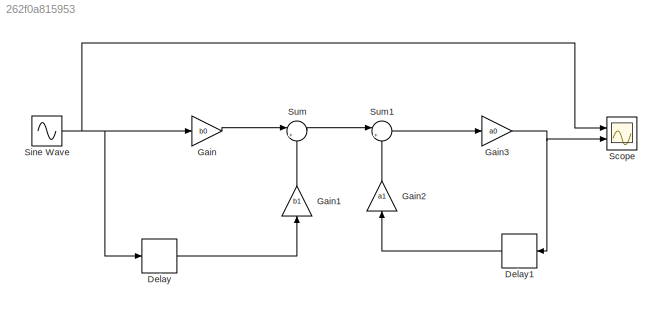
MODEL slx_262f0a815953
KIND model
CONFIG AbsTol = auto
CONFIG EnableMultiTasking = off
CONFIG FixedStep = auto
CONFIG MaxStep = auto
CONFIG MinStep = auto
CONFIG RelTol = 1e-3
CONFIG SampleTimeConstraint = Unconstrained
CONFIG SolverName = VariableStepAuto
CONFIG StartTime = 0.0
CONFIG StopTime = 10.0
WORKSPACE source: mxarray member
WORKSPACE a0 = 1
WORKSPACE a1 = 0.1584
WORKSPACE b0 = 0.5792
WORKSPACE b1 = -0.5792
WORKSPACE h2r = 6.28318530718
BLOCK [Delay] Delay
  DelayLength = 1
  InputPortMap = u0
  Ports = [1, 1]
BLOCK [Delay] Delay1
  DelayLength = 1
  InputPortMap = u0
  Ports = [1, 1]
BLOCK [Gain] Gain
  Gain = b0
BLOCK [Gain] Gain1
  Gain = b1
  NameLocation = right
BLOCK [Gain] Gain2
  Gain = a1
  NameLocation = right
BLOCK [Gain] Gain3
  Gain = a0
BLOCK [Scope] Scope
  Floating = off
  NumInputPorts = 2
  Ports = [2]
  ScopeSpecificationString = Simulink.scopes.TimeScopeBlockCfg('CurrentConfiguration', extmgr.ConfigurationSet(extmgr.Configuration('Core','General UI',true),extmgr.Configuration('Core','Source UI',true),extmgr.Configuration('Sources','WiredSimulink',true),extmgr.Configuration('Visuals','Time Domain',true,'SerializedDisplays',{struct('MinYLimReal','-1.25','MaxYLimReal','1.25','YLabelReal','','MinYLimMag','0.00000','MaxYLimMag...<+1373ch>
BLOCK [Sin] Sine Wave
  Frequency = 700*h2r
  Ports = [0, 1]
  SampleTime = 0
BLOCK [Sum] Sum
  Inputs = |++
  Ports = [2, 1]
BLOCK [Sum] Sum1
  Inputs = |++
  Ports = [2, 1]
LINE Delay1:1 -> Gain2:1
LINE Delay:1 -> Gain1:1
LINE Gain1:1 -> Sum:2
LINE Gain2:1 -> Sum1:2
NET Gain3:1 -> Delay1:1, Scope:2
LINE Gain:1 -> Sum:1
NET Sine Wave:1 -> Delay:1, Gain:1, Scope:1
LINE Sum1:1 -> Gain3:1
LINE Sum:1 -> Sum1:1
note: NET lines group one-source signal fan-out (src -> all destinations, sorted); 1:1 wires keep LINE
